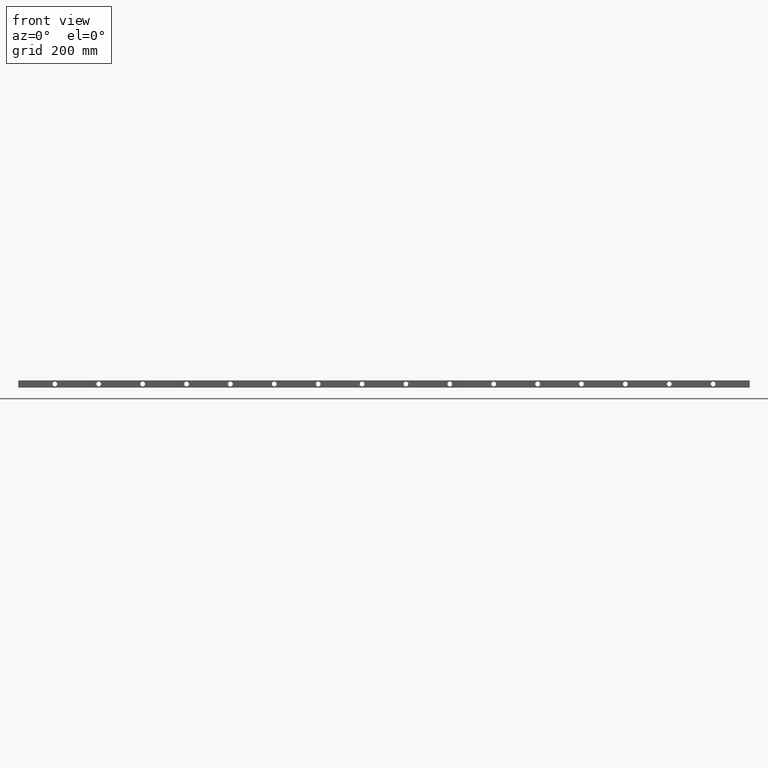
[diagram: clean part render]
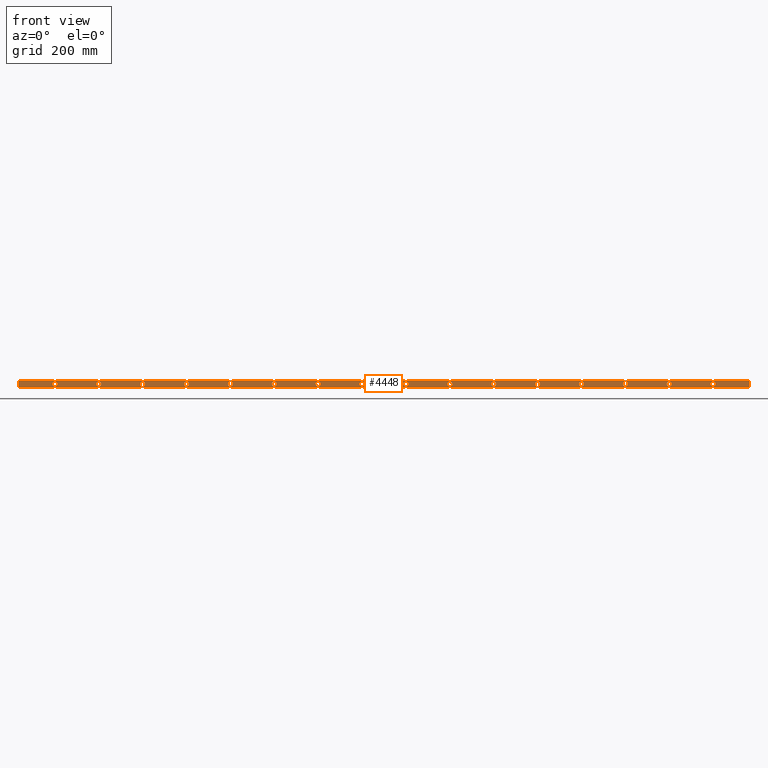
[diagram: same view with one face highlighted and labeled with its STEP entity id]
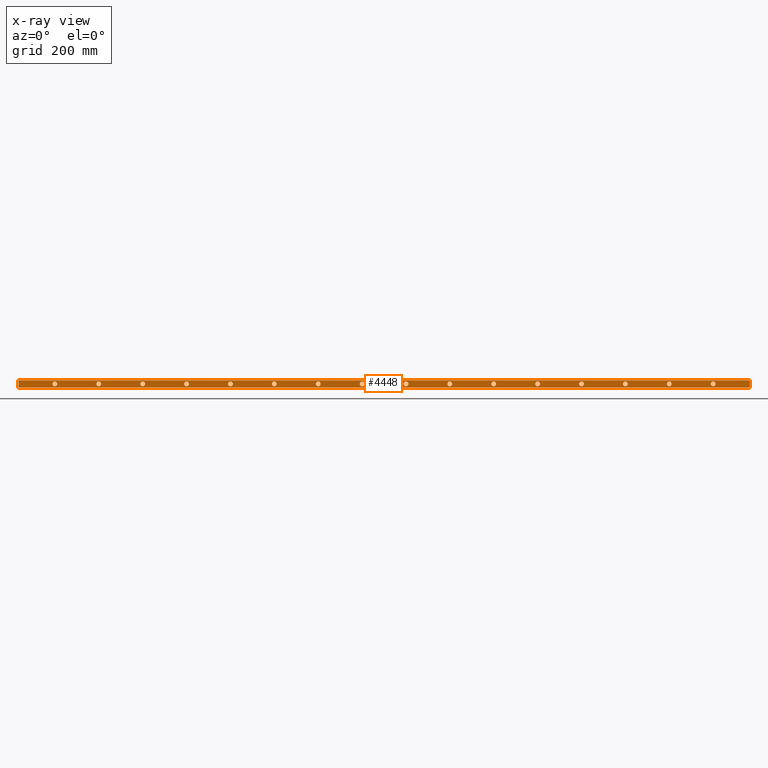
[diagram: x-ray of the same camera — body ghosted, the highlighted face saturated]
A machine part, front view. The second image highlights one B-rep face of the part: STEP entity #4448.
The next image is the same camera in x-ray: the body ghosted, the highlighted face saturated — about 0% of this face is hidden behind the body in this view.
In plain terms, the highlighted planar face has unit normal (0, -1, 0).
Its self-contained STEP definition (entity closure, byte-faithful):
#9 = CIRCLE ( 'NONE', #1716, 6.499999999999903200 ) ;
#24 = CARTESIAN_POINT ( 'NONE',  ( 939.9999999999995500, 0.0000000000000000000, -10.00000000000000000 ) ) ;
#68 = CIRCLE ( 'NONE', #6025, 6.499999999999985800 ) ;
#73 = ORIENTED_EDGE ( 'NONE', *, *, #1918, .T. ) ;
#79 = ORIENTED_EDGE ( 'NONE', *, *, #3986, .F. ) ;
#119 = DIRECTION ( 'NONE',  ( 0.0000000000000000000, 0.0000000000000000000, 1.000000000000000000 ) ) ;
#132 = DIRECTION ( 'NONE',  ( 0.0000000000000000000, 0.0000000000000000000, 1.000000000000000000 ) ) ;
#137 = DIRECTION ( 'NONE',  ( 0.0000000000000000000, 1.000000000000000000, 0.0000000000000000000 ) ) ;
#147 = CARTESIAN_POINT ( 'NONE',  ( 1299.999999999999300, 0.0000000000000000000, -10.00000000000000000 ) ) ;
#175 = EDGE_LOOP ( 'NONE', ( #1233, #2198 ) ) ;
#208 = CARTESIAN_POINT ( 'NONE',  ( 1659.999999999999100, 0.0000000000000000000, -16.49999999999990400 ) ) ;
#209 = ORIENTED_EDGE ( 'NONE', *, *, #4751, .F. ) ;
#217 = CIRCLE ( 'NONE', #2010, 6.500000000000019500 ) ;
#256 = VERTEX_POINT ( 'NONE', #5820 ) ;
#259 = CARTESIAN_POINT ( 'NONE',  ( 219.9999999999999100, 0.0000000000000000000, -3.500000000000014200 ) ) ;
#265 = EDGE_LOOP ( 'NONE', ( #6343, #4825 ) ) ;
#352 = FACE_BOUND ( 'NONE', #4057, .T. ) ;
#356 = EDGE_CURVE ( 'NONE', #861, #6946, #3884, .T. ) ;
#360 = VERTEX_POINT ( 'NONE', #5091 ) ;
#362 = DIRECTION ( 'NONE',  ( 0.0000000000000000000, 0.0000000000000000000, 1.000000000000000000 ) ) ;
#366 = DIRECTION ( 'NONE',  ( 0.0000000000000000000, 1.000000000000000000, 0.0000000000000000000 ) ) ;
#383 = CARTESIAN_POINT ( 'NONE',  ( 1899.999999999999100, 0.0000000000000000000, -10.00000000000000000 ) ) ;
#393 = CIRCLE ( 'NONE', #2357, 6.499999999999903200 ) ;
#395 = DIRECTION ( 'NONE',  ( 0.0000000000000000000, 1.000000000000000000, 0.0000000000000000000 ) ) ;
#415 = DIRECTION ( 'NONE',  ( 0.0000000000000000000, 0.0000000000000000000, 1.000000000000000000 ) ) ;
#416 = CARTESIAN_POINT ( 'NONE',  ( 1299.999999999999300, 0.0000000000000000000, -3.500000000000096800 ) ) ;
#417 = ORIENTED_EDGE ( 'NONE', *, *, #918, .T. ) ;
#419 = CARTESIAN_POINT ( 'NONE',  ( 1659.999999999999100, 0.0000000000000000000, -10.00000000000000000 ) ) ;
#424 = ORIENTED_EDGE ( 'NONE', *, *, #4217, .T. ) ;
#442 = CIRCLE ( 'NONE', #1518, 6.500000000000019500 ) ;
#512 = DIRECTION ( 'NONE',  ( -1.000000000000000000, -0.0000000000000000000, -0.0000000000000000000 ) ) ;
#535 = FACE_BOUND ( 'NONE', #6806, .T. ) ;
#543 = ORIENTED_EDGE ( 'NONE', *, *, #2253, .T. ) ;
#561 = DIRECTION ( 'NONE',  ( 0.0000000000000000000, 0.0000000000000000000, 1.000000000000000000 ) ) ;
#588 = ORIENTED_EDGE ( 'NONE', *, *, #6803, .T. ) ;
#598 = CARTESIAN_POINT ( 'NONE',  ( 1659.999999999999100, 0.0000000000000000000, -3.500000000000096800 ) ) ;
#606 = DIRECTION ( 'NONE',  ( 0.0000000000000000000, 0.0000000000000000000, 1.000000000000000000 ) ) ;
#622 = EDGE_LOOP ( 'NONE', ( #6006, #5356, #209, #79 ) ) ;
#627 = AXIS2_PLACEMENT_3D ( 'NONE', #5399, #2045, #5953 ) ;
#642 = DIRECTION ( 'NONE',  ( 0.0000000000000000000, 1.000000000000000000, 0.0000000000000000000 ) ) ;
#655 = CARTESIAN_POINT ( 'NONE',  ( 1059.999999999999300, 0.0000000000000000000, -10.00000000000000000 ) ) ;
#658 = VERTEX_POINT ( 'NONE', #3882 ) ;
#666 = ORIENTED_EDGE ( 'NONE', *, *, #3703, .T. ) ;
#667 = EDGE_CURVE ( 'NONE', #7011, #3123, #6823, .T. ) ;
#699 = FACE_BOUND ( 'NONE', #5470, .T. ) ;
#799 = EDGE_LOOP ( 'NONE', ( #588, #3771 ) ) ;
#861 = VERTEX_POINT ( 'NONE', #3185 ) ;
#870 = CARTESIAN_POINT ( 'NONE',  ( 1779.999999999999100, 0.0000000000000000000, -10.00000000000000000 ) ) ;
#883 = FACE_BOUND ( 'NONE', #4665, .T. ) ;
#895 = AXIS2_PLACEMENT_3D ( 'NONE', #4395, #1009, #4969 ) ;
#918 = EDGE_CURVE ( 'NONE', #1492, #360, #9, .T. ) ;
#929 = DIRECTION ( 'NONE',  ( 0.0000000000000000000, 1.000000000000000000, 0.0000000000000000000 ) ) ;
#948 = VERTEX_POINT ( 'NONE', #2502 ) ;
#955 = CARTESIAN_POINT ( 'NONE',  ( 1179.999999999999500, 0.0000000000000000000, -10.00000000000000000 ) ) ;
#957 = VERTEX_POINT ( 'NONE', #2536 ) ;
#976 = DIRECTION ( 'NONE',  ( -0.0000000000000000000, -0.0000000000000000000, 1.000000000000000000 ) ) ;
#978 = DIRECTION ( 'NONE',  ( 0.0000000000000000000, 0.0000000000000000000, 1.000000000000000000 ) ) ;
#994 = CIRCLE ( 'NONE', #3575, 6.500000000000015100 ) ;
#997 = ORIENTED_EDGE ( 'NONE', *, *, #6453, .T. ) ;
#1009 = DIRECTION ( 'NONE',  ( 0.0000000000000000000, 1.000000000000000000, 0.0000000000000000000 ) ) ;
#1018 = DIRECTION ( 'NONE',  ( 0.0000000000000000000, 1.000000000000000000, 0.0000000000000000000 ) ) ;
#1038 = CIRCLE ( 'NONE', #1433, 6.500000000000015100 ) ;
#1047 = CIRCLE ( 'NONE', #1366, 6.499999999999903200 ) ;
#1137 = ORIENTED_EDGE ( 'NONE', *, *, #5123, .T. ) ;
#1149 = VERTEX_POINT ( 'NONE', #1813 ) ;
#1158 = VERTEX_POINT ( 'NONE', #1803 ) ;
#1233 = ORIENTED_EDGE ( 'NONE', *, *, #6834, .T. ) ;
#1238 = VERTEX_POINT ( 'NONE', #1713 ) ;
#1244 = VERTEX_POINT ( 'NONE', #1666 ) ;
#1275 = CARTESIAN_POINT ( 'NONE',  ( 2000.000000000000000, 0.0000000000000000000, -20.00000000000000000 ) ) ;
#1322 = VERTEX_POINT ( 'NONE', #1549 ) ;
#1363 = DIRECTION ( 'NONE',  ( 0.0000000000000000000, 1.000000000000000000, 0.0000000000000000000 ) ) ;
#1366 = AXIS2_PLACEMENT_3D ( 'NONE', #870, #4817, #1448 ) ;
#1370 = VECTOR ( 'NONE', #1964, 1000.000000000000000 ) ;
#1384 = AXIS2_PLACEMENT_3D ( 'NONE', #6530, #3198, #7037 ) ;
#1388 = CARTESIAN_POINT ( 'NONE',  ( 0.0000000000000000000, 0.0000000000000000000, 0.0000000000000000000 ) ) ;
#1414 = EDGE_LOOP ( 'NONE', ( #6717, #997 ) ) ;
#1433 = AXIS2_PLACEMENT_3D ( 'NONE', #6686, #4548, #6903 ) ;
#1448 = DIRECTION ( 'NONE',  ( 0.0000000000000000000, 0.0000000000000000000, 1.000000000000000000 ) ) ;
#1457 = EDGE_CURVE ( 'NONE', #3842, #1149, #2226, .T. ) ;
#1492 = VERTEX_POINT ( 'NONE', #416 ) ;
#1504 = EDGE_CURVE ( 'NONE', #360, #1492, #3720, .T. ) ;
#1518 = AXIS2_PLACEMENT_3D ( 'NONE', #24, #3965, #606 ) ;
#1527 = DIRECTION ( 'NONE',  ( 0.0000000000000000000, 0.0000000000000000000, 1.000000000000000000 ) ) ;
#1532 = CARTESIAN_POINT ( 'NONE',  ( 1419.999999999999300, 0.0000000000000000000, -10.00000000000000000 ) ) ;
#1549 = CARTESIAN_POINT ( 'NONE',  ( 1059.999999999999300, 0.0000000000000000000, -16.49999999999990400 ) ) ;
#1637 = EDGE_CURVE ( 'NONE', #5128, #1244, #3854, .T. ) ;
#1641 = EDGE_CURVE ( 'NONE', #658, #1765, #1038, .T. ) ;
#1650 = VECTOR ( 'NONE', #512, 1000.000000000000000 ) ;
#1666 = CARTESIAN_POINT ( 'NONE',  ( 699.9999999999996600, 0.0000000000000000000, -3.499999999999980500 ) ) ;
#1685 = DIRECTION ( 'NONE',  ( 0.0000000000000000000, -1.000000000000000000, 0.0000000000000000000 ) ) ;
#1705 = ORIENTED_EDGE ( 'NONE', *, *, #2060, .T. ) ;
#1713 = CARTESIAN_POINT ( 'NONE',  ( 579.9999999999997700, 0.0000000000000000000, -16.50000000000002100 ) ) ;
#1716 = AXIS2_PLACEMENT_3D ( 'NONE', #2483, #2481, #2475 ) ;
#1765 = VERTEX_POINT ( 'NONE', #6734 ) ;
#1767 = CIRCLE ( 'NONE', #895, 6.500000000000019500 ) ;
#1771 = EDGE_LOOP ( 'NONE', ( #424, #3678 ) ) ;
#1781 = ORIENTED_EDGE ( 'NONE', *, *, #5004, .T. ) ;
#1803 = CARTESIAN_POINT ( 'NONE',  ( 219.9999999999999100, 0.0000000000000000000, -16.49999999999998600 ) ) ;
#1813 = CARTESIAN_POINT ( 'NONE',  ( 1899.999999999999100, 0.0000000000000000000, -3.500000000000096800 ) ) ;
#1848 = FACE_BOUND ( 'NONE', #175, .T. ) ;
#1908 = EDGE_CURVE ( 'NONE', #1929, #1322, #2973, .T. ) ;
#1918 = EDGE_CURVE ( 'NONE', #3202, #6919, #7028, .T. ) ;
#1929 = VERTEX_POINT ( 'NONE', #3323 ) ;
#1950 = CARTESIAN_POINT ( 'NONE',  ( 2000.000000000000000, 0.0000000000000000000, 0.0000000000000000000 ) ) ;
#1954 = AXIS2_PLACEMENT_3D ( 'NONE', #383, #366, #362 ) ;
#1964 = DIRECTION ( 'NONE',  ( 1.000000000000000000, 0.0000000000000000000, 0.0000000000000000000 ) ) ;
#2005 = DIRECTION ( 'NONE',  ( 0.0000000000000000000, 0.0000000000000000000, 1.000000000000000000 ) ) ;
#2010 = AXIS2_PLACEMENT_3D ( 'NONE', #2988, #6849, #3545 ) ;
#2023 = DIRECTION ( 'NONE',  ( 0.0000000000000000000, 1.000000000000000000, 0.0000000000000000000 ) ) ;
#2033 = CARTESIAN_POINT ( 'NONE',  ( 339.9999999999998900, 0.0000000000000000000, -10.00000000000000000 ) ) ;
#2043 = FACE_BOUND ( 'NONE', #265, .T. ) ;
#2045 = DIRECTION ( 'NONE',  ( 0.0000000000000000000, 1.000000000000000000, 0.0000000000000000000 ) ) ;
#2054 = CARTESIAN_POINT ( 'NONE',  ( 339.9999999999998900, 0.0000000000000000000, -10.00000000000000000 ) ) ;
#2060 = EDGE_CURVE ( 'NONE', #1149, #3842, #3407, .T. ) ;
#2069 = ORIENTED_EDGE ( 'NONE', *, *, #1457, .T. ) ;
#2100 = DIRECTION ( 'NONE',  ( 0.0000000000000000000, 0.0000000000000000000, 1.000000000000000000 ) ) ;
#2102 = ORIENTED_EDGE ( 'NONE', *, *, #6787, .T. ) ;
#2117 = CARTESIAN_POINT ( 'NONE',  ( 339.9999999999998900, 0.0000000000000000000, -3.499999999999984900 ) ) ;
#2127 = ORIENTED_EDGE ( 'NONE', *, *, #2298, .T. ) ;
#2150 = CARTESIAN_POINT ( 'NONE',  ( 339.9999999999998900, 0.0000000000000000000, -16.50000000000001400 ) ) ;
#2196 = DIRECTION ( 'NONE',  ( 0.0000000000000000000, 0.0000000000000000000, 1.000000000000000000 ) ) ;
#2198 = ORIENTED_EDGE ( 'NONE', *, *, #667, .T. ) ;
#2204 = DIRECTION ( 'NONE',  ( 0.0000000000000000000, 1.000000000000000000, 0.0000000000000000000 ) ) ;
#2208 = FACE_BOUND ( 'NONE', #3435, .T. ) ;
#2219 = CARTESIAN_POINT ( 'NONE',  ( 579.9999999999997700, 0.0000000000000000000, -10.00000000000000000 ) ) ;
#2220 = ORIENTED_EDGE ( 'NONE', *, *, #3509, .T. ) ;
#2226 = CIRCLE ( 'NONE', #1954, 6.499999999999903200 ) ;
#2228 = DIRECTION ( 'NONE',  ( 0.0000000000000000000, 1.000000000000000000, 0.0000000000000000000 ) ) ;
#2253 = EDGE_CURVE ( 'NONE', #1238, #6662, #5518, .T. ) ;
#2273 = VERTEX_POINT ( 'NONE', #2287 ) ;
#2287 = CARTESIAN_POINT ( 'NONE',  ( 0.0000000000000000000, 0.0000000000000000000, 0.0000000000000000000 ) ) ;
#2293 = DIRECTION ( 'NONE',  ( 0.0000000000000000000, 1.000000000000000000, 0.0000000000000000000 ) ) ;
#2298 = EDGE_CURVE ( 'NONE', #2324, #5241, #3843, .T. ) ;
#2324 = VERTEX_POINT ( 'NONE', #2117 ) ;
#2357 = AXIS2_PLACEMENT_3D ( 'NONE', #6684, #3350, #7185 ) ;
#2468 = LINE ( 'NONE', #1950, #5285 ) ;
#2475 = DIRECTION ( 'NONE',  ( 0.0000000000000000000, 0.0000000000000000000, 1.000000000000000000 ) ) ;
#2481 = DIRECTION ( 'NONE',  ( 0.0000000000000000000, 1.000000000000000000, 0.0000000000000000000 ) ) ;
#2483 = CARTESIAN_POINT ( 'NONE',  ( 1299.999999999999300, 0.0000000000000000000, -10.00000000000000000 ) ) ;
#2490 = CARTESIAN_POINT ( 'NONE',  ( 1539.999999999999100, 0.0000000000000000000, -16.49999999999990400 ) ) ;
#2502 = CARTESIAN_POINT ( 'NONE',  ( 1539.999999999999100, 0.0000000000000000000, -3.500000000000096800 ) ) ;
#2530 = CIRCLE ( 'NONE', #5531, 6.500000000000019500 ) ;
#2536 = CARTESIAN_POINT ( 'NONE',  ( 939.9999999999995500, 0.0000000000000000000, -3.499999999999980500 ) ) ;
#2579 = CARTESIAN_POINT ( 'NONE',  ( 0.0000000000000000000, 0.0000000000000000000, -20.00000000000000000 ) ) ;
#2613 = DIRECTION ( 'NONE',  ( 0.0000000000000000000, 0.0000000000000000000, 1.000000000000000000 ) ) ;
#2684 = CARTESIAN_POINT ( 'NONE',  ( 699.9999999999996600, 0.0000000000000000000, -10.00000000000000000 ) ) ;
#2782 = ORIENTED_EDGE ( 'NONE', *, *, #3453, .T. ) ;
#2874 = LINE ( 'NONE', #1388, #1370 ) ;
#2878 = CIRCLE ( 'NONE', #627, 6.500000000000019500 ) ;
#2907 = EDGE_CURVE ( 'NONE', #1765, #658, #7022, .T. ) ;
#2918 = CARTESIAN_POINT ( 'NONE',  ( 1899.999999999999100, 0.0000000000000000000, -16.49999999999990400 ) ) ;
#2973 = CIRCLE ( 'NONE', #3689, 6.499999999999903200 ) ;
#2988 = CARTESIAN_POINT ( 'NONE',  ( 579.9999999999997700, 0.0000000000000000000, -10.00000000000000000 ) ) ;
#3006 = EDGE_LOOP ( 'NONE', ( #3679, #3139 ) ) ;
#3020 = CARTESIAN_POINT ( 'NONE',  ( 2000.000000000000000, 0.0000000000000000000, 0.0000000000000000000 ) ) ;
#3059 = CIRCLE ( 'NONE', #1384, 6.500000000000016000 ) ;
#3123 = VERTEX_POINT ( 'NONE', #208 ) ;
#3139 = ORIENTED_EDGE ( 'NONE', *, *, #5364, .T. ) ;
#3185 = CARTESIAN_POINT ( 'NONE',  ( 100.0000000000000000, 0.0000000000000000000, -16.50000000000001400 ) ) ;
#3198 = DIRECTION ( 'NONE',  ( 0.0000000000000000000, 1.000000000000000000, 0.0000000000000000000 ) ) ;
#3202 = VERTEX_POINT ( 'NONE', #3620 ) ;
#3207 = AXIS2_PLACEMENT_3D ( 'NONE', #3832, #3827, #3822 ) ;
#3250 = DIRECTION ( 'NONE',  ( 0.0000000000000000000, 0.0000000000000000000, 1.000000000000000000 ) ) ;
#3276 = EDGE_LOOP ( 'NONE', ( #4145, #7073 ) ) ;
#3289 = EDGE_CURVE ( 'NONE', #4946, #256, #2878, .T. ) ;
#3296 = EDGE_CURVE ( 'NONE', #6946, #861, #3059, .T. ) ;
#3323 = CARTESIAN_POINT ( 'NONE',  ( 1059.999999999999300, 0.0000000000000000000, -3.500000000000096800 ) ) ;
#3347 = FACE_BOUND ( 'NONE', #3006, .T. ) ;
#3350 = DIRECTION ( 'NONE',  ( 0.0000000000000000000, 1.000000000000000000, 0.0000000000000000000 ) ) ;
#3370 = CARTESIAN_POINT ( 'NONE',  ( 0.0000000000000000000, 0.0000000000000000000, 0.0000000000000000000 ) ) ;
#3374 = CARTESIAN_POINT ( 'NONE',  ( 459.9999999999997200, 0.0000000000000000000, -10.00000000000000000 ) ) ;
#3378 = VERTEX_POINT ( 'NONE', #259 ) ;
#3406 = CARTESIAN_POINT ( 'NONE',  ( 100.0000000000000000, 0.0000000000000000000, -3.499999999999984000 ) ) ;
#3407 = CIRCLE ( 'NONE', #6312, 6.499999999999903200 ) ;
#3429 = CARTESIAN_POINT ( 'NONE',  ( 819.9999999999995500, 0.0000000000000000000, -3.499999999999980500 ) ) ;
#3435 = EDGE_LOOP ( 'NONE', ( #543, #3491 ) ) ;
#3446 = AXIS2_PLACEMENT_3D ( 'NONE', #147, #137, #119 ) ;
#3453 = EDGE_CURVE ( 'NONE', #5086, #6565, #4009, .T. ) ;
#3472 = EDGE_CURVE ( 'NONE', #5440, #948, #3841, .T. ) ;
#3491 = ORIENTED_EDGE ( 'NONE', *, *, #3888, .T. ) ;
#3509 = EDGE_CURVE ( 'NONE', #1244, #5128, #2530, .T. ) ;
#3511 = DIRECTION ( 'NONE',  ( 0.0000000000000000000, 1.000000000000000000, 0.0000000000000000000 ) ) ;
#3515 = EDGE_CURVE ( 'NONE', #5146, #2273, #5170, .T. ) ;
#3516 = FACE_BOUND ( 'NONE', #4320, .T. ) ;
#3545 = DIRECTION ( 'NONE',  ( 0.0000000000000000000, 0.0000000000000000000, 1.000000000000000000 ) ) ;
#3575 = AXIS2_PLACEMENT_3D ( 'NONE', #2054, #5969, #2613 ) ;
#3589 = ORIENTED_EDGE ( 'NONE', *, *, #3296, .T. ) ;
#3620 = CARTESIAN_POINT ( 'NONE',  ( 1779.999999999999100, 0.0000000000000000000, -16.49999999999990400 ) ) ;
#3626 = AXIS2_PLACEMENT_3D ( 'NONE', #5658, #2293, #6213 ) ;
#3674 = CARTESIAN_POINT ( 'NONE',  ( 699.9999999999996600, 0.0000000000000000000, -16.50000000000002100 ) ) ;
#3678 = ORIENTED_EDGE ( 'NONE', *, *, #3289, .T. ) ;
#3679 = ORIENTED_EDGE ( 'NONE', *, *, #5502, .T. ) ;
#3689 = AXIS2_PLACEMENT_3D ( 'NONE', #655, #642, #561 ) ;
#3702 = FACE_BOUND ( 'NONE', #1414, .T. ) ;
#3703 = EDGE_CURVE ( 'NONE', #1158, #3378, #5946, .T. ) ;
#3717 = AXIS2_PLACEMENT_3D ( 'NONE', #5121, #5099, #5092 ) ;
#3720 = CIRCLE ( 'NONE', #3446, 6.499999999999903200 ) ;
#3754 = EDGE_CURVE ( 'NONE', #6472, #5146, #5763, .T. ) ;
#3760 = CARTESIAN_POINT ( 'NONE',  ( 1179.999999999999500, 0.0000000000000000000, -10.00000000000000000 ) ) ;
#3771 = ORIENTED_EDGE ( 'NONE', *, *, #4896, .T. ) ;
#3780 = ORIENTED_EDGE ( 'NONE', *, *, #356, .T. ) ;
#3781 = DIRECTION ( 'NONE',  ( 0.0000000000000000000, 1.000000000000000000, 0.0000000000000000000 ) ) ;
#3795 = EDGE_LOOP ( 'NONE', ( #3780, #3589 ) ) ;
#3804 = VERTEX_POINT ( 'NONE', #5119 ) ;
#3808 = CIRCLE ( 'NONE', #4714, 6.499999999999903200 ) ;
#3822 = DIRECTION ( 'NONE',  ( 0.0000000000000000000, 0.0000000000000000000, 1.000000000000000000 ) ) ;
#3827 = DIRECTION ( 'NONE',  ( 0.0000000000000000000, 1.000000000000000000, 0.0000000000000000000 ) ) ;
#3832 = CARTESIAN_POINT ( 'NONE',  ( 1659.999999999999100, 0.0000000000000000000, -10.00000000000000000 ) ) ;
#3841 = CIRCLE ( 'NONE', #5162, 6.499999999999903200 ) ;
#3842 = VERTEX_POINT ( 'NONE', #2918 ) ;
#3843 = CIRCLE ( 'NONE', #4679, 6.500000000000015100 ) ;
#3854 = CIRCLE ( 'NONE', #6783, 6.500000000000019500 ) ;
#3870 = CARTESIAN_POINT ( 'NONE',  ( 0.0000000000000000000, 0.0000000000000000000, -20.00000000000000000 ) ) ;
#3877 = CARTESIAN_POINT ( 'NONE',  ( 1779.999999999999100, 0.0000000000000000000, -3.500000000000096800 ) ) ;
#3882 = CARTESIAN_POINT ( 'NONE',  ( 459.9999999999997200, 0.0000000000000000000, -16.50000000000001400 ) ) ;
#3884 = CIRCLE ( 'NONE', #3717, 6.500000000000016000 ) ;
#3888 = EDGE_CURVE ( 'NONE', #6662, #1238, #217, .T. ) ;
#3921 = AXIS2_PLACEMENT_3D ( 'NONE', #2219, #2204, #2196 ) ;
#3934 = DIRECTION ( 'NONE',  ( 0.0000000000000000000, 0.0000000000000000000, 1.000000000000000000 ) ) ;
#3965 = DIRECTION ( 'NONE',  ( 0.0000000000000000000, 1.000000000000000000, 0.0000000000000000000 ) ) ;
#3983 = CIRCLE ( 'NONE', #4351, 6.500000000000019500 ) ;
#3986 = EDGE_CURVE ( 'NONE', #2273, #4727, #2874, .T. ) ;
#4009 = CIRCLE ( 'NONE', #4011, 6.499999999999903200 ) ;
#4011 = AXIS2_PLACEMENT_3D ( 'NONE', #955, #4900, #1527 ) ;
#4044 = EDGE_LOOP ( 'NONE', ( #73, #1137 ) ) ;
#4055 = AXIS2_PLACEMENT_3D ( 'NONE', #6324, #6306, #6296 ) ;
#4057 = EDGE_LOOP ( 'NONE', ( #2069, #1705 ) ) ;
#4073 = CIRCLE ( 'NONE', #4090, 6.499999999999903200 ) ;
#4090 = AXIS2_PLACEMENT_3D ( 'NONE', #6821, #3511, #132 ) ;
#4145 = ORIENTED_EDGE ( 'NONE', *, *, #5866, .T. ) ;
#4160 = AXIS2_PLACEMENT_3D ( 'NONE', #3374, #7211, #3934 ) ;
#4217 = EDGE_CURVE ( 'NONE', #256, #4946, #1767, .T. ) ;
#4308 = CARTESIAN_POINT ( 'NONE',  ( 939.9999999999995500, 0.0000000000000000000, -10.00000000000000000 ) ) ;
#4320 = EDGE_LOOP ( 'NONE', ( #666, #1781 ) ) ;
#4339 = DIRECTION ( 'NONE',  ( 0.0000000000000000000, 0.0000000000000000000, 1.000000000000000000 ) ) ;
#4351 = AXIS2_PLACEMENT_3D ( 'NONE', #4308, #929, #4882 ) ;
#4360 = DIRECTION ( 'NONE',  ( 0.0000000000000000000, 1.000000000000000000, 0.0000000000000000000 ) ) ;
#4395 = CARTESIAN_POINT ( 'NONE',  ( 819.9999999999995500, 0.0000000000000000000, -10.00000000000000000 ) ) ;
#4404 = CARTESIAN_POINT ( 'NONE',  ( 219.9999999999999100, 0.0000000000000000000, -10.00000000000000000 ) ) ;
#4448 = ADVANCED_FACE ( 'NONE', ( #5374, #3702, #883, #5206, #6657, #2208, #699, #6494, #5037, #3516, #2043, #535, #6321, #4855, #3347, #1848, #352 ), #6681, .T. ) ;
#4548 = DIRECTION ( 'NONE',  ( 0.0000000000000000000, 1.000000000000000000, 0.0000000000000000000 ) ) ;
#4665 = EDGE_LOOP ( 'NONE', ( #6816, #417 ) ) ;
#4679 = AXIS2_PLACEMENT_3D ( 'NONE', #2033, #2023, #2005 ) ;
#4714 = AXIS2_PLACEMENT_3D ( 'NONE', #419, #4360, #978 ) ;
#4727 = VERTEX_POINT ( 'NONE', #3020 ) ;
#4738 = CARTESIAN_POINT ( 'NONE',  ( 219.9999999999999100, 0.0000000000000000000, -10.00000000000000000 ) ) ;
#4749 = DIRECTION ( 'NONE',  ( 0.0000000000000000000, 0.0000000000000000000, -1.000000000000000000 ) ) ;
#4751 = EDGE_CURVE ( 'NONE', #4727, #6472, #2468, .T. ) ;
#4817 = DIRECTION ( 'NONE',  ( 0.0000000000000000000, 1.000000000000000000, 0.0000000000000000000 ) ) ;
#4825 = ORIENTED_EDGE ( 'NONE', *, *, #2907, .T. ) ;
#4849 = CIRCLE ( 'NONE', #3626, 6.499999999999903200 ) ;
#4851 = CARTESIAN_POINT ( 'NONE',  ( 699.9999999999996600, 0.0000000000000000000, -10.00000000000000000 ) ) ;
#4855 = FACE_BOUND ( 'NONE', #5644, .T. ) ;
#4882 = DIRECTION ( 'NONE',  ( 0.0000000000000000000, 0.0000000000000000000, 1.000000000000000000 ) ) ;
#4896 = EDGE_CURVE ( 'NONE', #957, #6947, #442, .T. ) ;
#4900 = DIRECTION ( 'NONE',  ( 0.0000000000000000000, 1.000000000000000000, 0.0000000000000000000 ) ) ;
#4946 = VERTEX_POINT ( 'NONE', #3429 ) ;
#4969 = DIRECTION ( 'NONE',  ( 0.0000000000000000000, 0.0000000000000000000, 1.000000000000000000 ) ) ;
#4976 = DIRECTION ( 'NONE',  ( 0.0000000000000000000, 0.0000000000000000000, 1.000000000000000000 ) ) ;
#5004 = EDGE_CURVE ( 'NONE', #3378, #1158, #68, .T. ) ;
#5037 = FACE_OUTER_BOUND ( 'NONE', #622, .T. ) ;
#5083 = DIRECTION ( 'NONE',  ( 0.0000000000000000000, 0.0000000000000000000, 1.000000000000000000 ) ) ;
#5086 = VERTEX_POINT ( 'NONE', #5904 ) ;
#5091 = CARTESIAN_POINT ( 'NONE',  ( 1299.999999999999300, 0.0000000000000000000, -16.49999999999990400 ) ) ;
#5092 = DIRECTION ( 'NONE',  ( 0.0000000000000000000, 0.0000000000000000000, 1.000000000000000000 ) ) ;
#5098 = DIRECTION ( 'NONE',  ( 0.0000000000000000000, 1.000000000000000000, 0.0000000000000000000 ) ) ;
#5099 = DIRECTION ( 'NONE',  ( 0.0000000000000000000, 1.000000000000000000, 0.0000000000000000000 ) ) ;
#5113 = CARTESIAN_POINT ( 'NONE',  ( 1899.999999999999100, 0.0000000000000000000, -10.00000000000000000 ) ) ;
#5119 = CARTESIAN_POINT ( 'NONE',  ( 1419.999999999999300, 0.0000000000000000000, -16.49999999999990400 ) ) ;
#5121 = CARTESIAN_POINT ( 'NONE',  ( 100.0000000000000000, 0.0000000000000000000, -10.00000000000000000 ) ) ;
#5123 = EDGE_CURVE ( 'NONE', #6919, #3202, #1047, .T. ) ;
#5128 = VERTEX_POINT ( 'NONE', #3674 ) ;
#5146 = VERTEX_POINT ( 'NONE', #2579 ) ;
#5162 = AXIS2_PLACEMENT_3D ( 'NONE', #7064, #3781, #415 ) ;
#5170 = LINE ( 'NONE', #6033, #6458 ) ;
#5206 = FACE_BOUND ( 'NONE', #3276, .T. ) ;
#5241 = VERTEX_POINT ( 'NONE', #2150 ) ;
#5285 = VECTOR ( 'NONE', #4749, 1000.000000000000000 ) ;
#5304 = DIRECTION ( 'NONE',  ( 0.0000000000000000000, 0.0000000000000000000, 1.000000000000000000 ) ) ;
#5356 = ORIENTED_EDGE ( 'NONE', *, *, #3754, .F. ) ;
#5364 = EDGE_CURVE ( 'NONE', #5432, #3804, #4849, .T. ) ;
#5374 = FACE_BOUND ( 'NONE', #4044, .T. ) ;
#5399 = CARTESIAN_POINT ( 'NONE',  ( 819.9999999999995500, 0.0000000000000000000, -10.00000000000000000 ) ) ;
#5432 = VERTEX_POINT ( 'NONE', #6737 ) ;
#5440 = VERTEX_POINT ( 'NONE', #2490 ) ;
#5464 = DIRECTION ( 'NONE',  ( 0.0000000000000000000, 1.000000000000000000, 0.0000000000000000000 ) ) ;
#5470 = EDGE_LOOP ( 'NONE', ( #2102, #2127 ) ) ;
#5498 = EDGE_CURVE ( 'NONE', #6565, #5086, #7201, .T. ) ;
#5502 = EDGE_CURVE ( 'NONE', #3804, #5432, #5789, .T. ) ;
#5518 = CIRCLE ( 'NONE', #3921, 6.500000000000019500 ) ;
#5531 = AXIS2_PLACEMENT_3D ( 'NONE', #2684, #6584, #3250 ) ;
#5644 = EDGE_LOOP ( 'NONE', ( #2782, #5712 ) ) ;
#5658 = CARTESIAN_POINT ( 'NONE',  ( 1419.999999999999300, 0.0000000000000000000, -10.00000000000000000 ) ) ;
#5712 = ORIENTED_EDGE ( 'NONE', *, *, #5498, .T. ) ;
#5763 = LINE ( 'NONE', #3870, #1650 ) ;
#5789 = CIRCLE ( 'NONE', #6945, 6.499999999999903200 ) ;
#5811 = CARTESIAN_POINT ( 'NONE',  ( 579.9999999999997700, 0.0000000000000000000, -3.499999999999980500 ) ) ;
#5820 = CARTESIAN_POINT ( 'NONE',  ( 819.9999999999995500, 0.0000000000000000000, -16.50000000000002100 ) ) ;
#5866 = EDGE_CURVE ( 'NONE', #1322, #1929, #393, .T. ) ;
#5900 = AXIS2_PLACEMENT_3D ( 'NONE', #4404, #1018, #4976 ) ;
#5904 = CARTESIAN_POINT ( 'NONE',  ( 1179.999999999999500, 0.0000000000000000000, -16.49999999999990400 ) ) ;
#5946 = CIRCLE ( 'NONE', #5900, 6.499999999999985800 ) ;
#5953 = DIRECTION ( 'NONE',  ( 0.0000000000000000000, 0.0000000000000000000, 1.000000000000000000 ) ) ;
#5969 = DIRECTION ( 'NONE',  ( 0.0000000000000000000, 1.000000000000000000, 0.0000000000000000000 ) ) ;
#6006 = ORIENTED_EDGE ( 'NONE', *, *, #3515, .F. ) ;
#6025 = AXIS2_PLACEMENT_3D ( 'NONE', #4738, #1363, #5304 ) ;
#6033 = CARTESIAN_POINT ( 'NONE',  ( 0.0000000000000000000, 0.0000000000000000000, 0.0000000000000000000 ) ) ;
#6213 = DIRECTION ( 'NONE',  ( 0.0000000000000000000, 0.0000000000000000000, 1.000000000000000000 ) ) ;
#6235 = CARTESIAN_POINT ( 'NONE',  ( 1179.999999999999500, 0.0000000000000000000, -3.500000000000096800 ) ) ;
#6257 = AXIS2_PLACEMENT_3D ( 'NONE', #3760, #395, #4339 ) ;
#6296 = DIRECTION ( 'NONE',  ( 0.0000000000000000000, 0.0000000000000000000, 1.000000000000000000 ) ) ;
#6306 = DIRECTION ( 'NONE',  ( 0.0000000000000000000, 1.000000000000000000, 0.0000000000000000000 ) ) ;
#6312 = AXIS2_PLACEMENT_3D ( 'NONE', #5113, #5098, #5083 ) ;
#6321 = FACE_BOUND ( 'NONE', #799, .T. ) ;
#6324 = CARTESIAN_POINT ( 'NONE',  ( 1779.999999999999100, 0.0000000000000000000, -10.00000000000000000 ) ) ;
#6343 = ORIENTED_EDGE ( 'NONE', *, *, #1641, .T. ) ;
#6453 = EDGE_CURVE ( 'NONE', #948, #5440, #4073, .T. ) ;
#6458 = VECTOR ( 'NONE', #976, 1000.000000000000000 ) ;
#6472 = VERTEX_POINT ( 'NONE', #1275 ) ;
#6494 = FACE_BOUND ( 'NONE', #3795, .T. ) ;
#6528 = AXIS2_PLACEMENT_3D ( 'NONE', #3370, #1685, #7208 ) ;
#6530 = CARTESIAN_POINT ( 'NONE',  ( 100.0000000000000000, 0.0000000000000000000, -10.00000000000000000 ) ) ;
#6557 = ORIENTED_EDGE ( 'NONE', *, *, #1637, .T. ) ;
#6565 = VERTEX_POINT ( 'NONE', #6235 ) ;
#6584 = DIRECTION ( 'NONE',  ( 0.0000000000000000000, 1.000000000000000000, 0.0000000000000000000 ) ) ;
#6657 = FACE_BOUND ( 'NONE', #1771, .T. ) ;
#6662 = VERTEX_POINT ( 'NONE', #5811 ) ;
#6681 = PLANE ( 'NONE',  #6528 ) ;
#6684 = CARTESIAN_POINT ( 'NONE',  ( 1059.999999999999300, 0.0000000000000000000, -10.00000000000000000 ) ) ;
#6686 = CARTESIAN_POINT ( 'NONE',  ( 459.9999999999997200, 0.0000000000000000000, -10.00000000000000000 ) ) ;
#6717 = ORIENTED_EDGE ( 'NONE', *, *, #3472, .T. ) ;
#6733 = CARTESIAN_POINT ( 'NONE',  ( 939.9999999999995500, 0.0000000000000000000, -16.50000000000002100 ) ) ;
#6734 = CARTESIAN_POINT ( 'NONE',  ( 459.9999999999997200, 0.0000000000000000000, -3.499999999999984900 ) ) ;
#6737 = CARTESIAN_POINT ( 'NONE',  ( 1419.999999999999300, 0.0000000000000000000, -3.500000000000096800 ) ) ;
#6783 = AXIS2_PLACEMENT_3D ( 'NONE', #4851, #2228, #6844 ) ;
#6787 = EDGE_CURVE ( 'NONE', #5241, #2324, #994, .T. ) ;
#6803 = EDGE_CURVE ( 'NONE', #6947, #957, #3983, .T. ) ;
#6806 = EDGE_LOOP ( 'NONE', ( #6557, #2220 ) ) ;
#6816 = ORIENTED_EDGE ( 'NONE', *, *, #1504, .T. ) ;
#6821 = CARTESIAN_POINT ( 'NONE',  ( 1539.999999999999100, 0.0000000000000000000, -10.00000000000000000 ) ) ;
#6823 = CIRCLE ( 'NONE', #3207, 6.499999999999903200 ) ;
#6834 = EDGE_CURVE ( 'NONE', #3123, #7011, #3808, .T. ) ;
#6844 = DIRECTION ( 'NONE',  ( 0.0000000000000000000, 0.0000000000000000000, 1.000000000000000000 ) ) ;
#6849 = DIRECTION ( 'NONE',  ( 0.0000000000000000000, 1.000000000000000000, 0.0000000000000000000 ) ) ;
#6903 = DIRECTION ( 'NONE',  ( 0.0000000000000000000, 0.0000000000000000000, 1.000000000000000000 ) ) ;
#6919 = VERTEX_POINT ( 'NONE', #3877 ) ;
#6945 = AXIS2_PLACEMENT_3D ( 'NONE', #1532, #5464, #2100 ) ;
#6946 = VERTEX_POINT ( 'NONE', #3406 ) ;
#6947 = VERTEX_POINT ( 'NONE', #6733 ) ;
#7011 = VERTEX_POINT ( 'NONE', #598 ) ;
#7022 = CIRCLE ( 'NONE', #4160, 6.500000000000015100 ) ;
#7028 = CIRCLE ( 'NONE', #4055, 6.499999999999903200 ) ;
#7037 = DIRECTION ( 'NONE',  ( 0.0000000000000000000, 0.0000000000000000000, 1.000000000000000000 ) ) ;
#7064 = CARTESIAN_POINT ( 'NONE',  ( 1539.999999999999100, 0.0000000000000000000, -10.00000000000000000 ) ) ;
#7073 = ORIENTED_EDGE ( 'NONE', *, *, #1908, .T. ) ;
#7185 = DIRECTION ( 'NONE',  ( 0.0000000000000000000, 0.0000000000000000000, 1.000000000000000000 ) ) ;
#7201 = CIRCLE ( 'NONE', #6257, 6.499999999999903200 ) ;
#7208 = DIRECTION ( 'NONE',  ( 0.0000000000000000000, -0.0000000000000000000, -1.000000000000000000 ) ) ;
#7211 = DIRECTION ( 'NONE',  ( 0.0000000000000000000, 1.000000000000000000, 0.0000000000000000000 ) ) ;